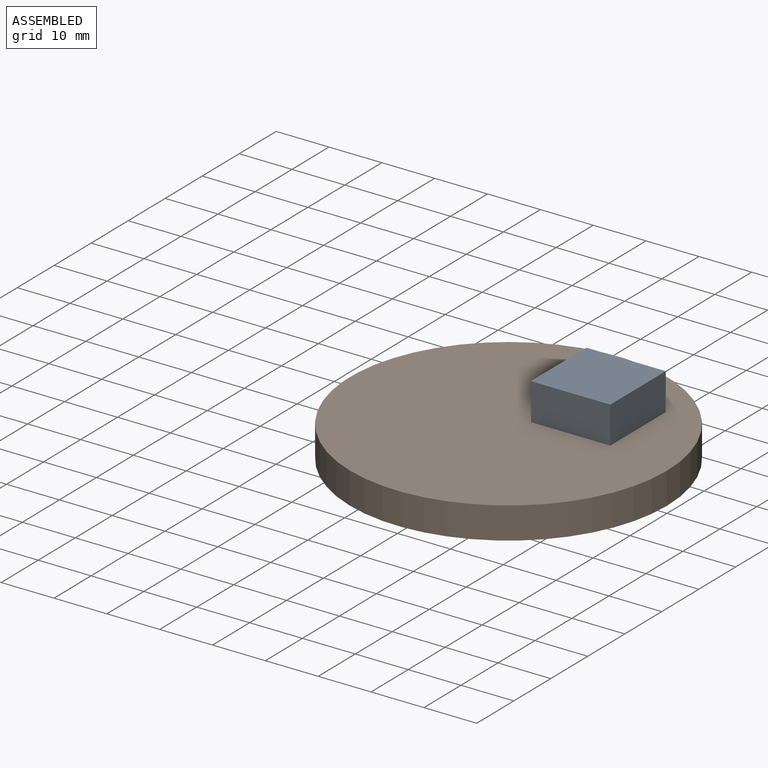
[diagram: assembled view]
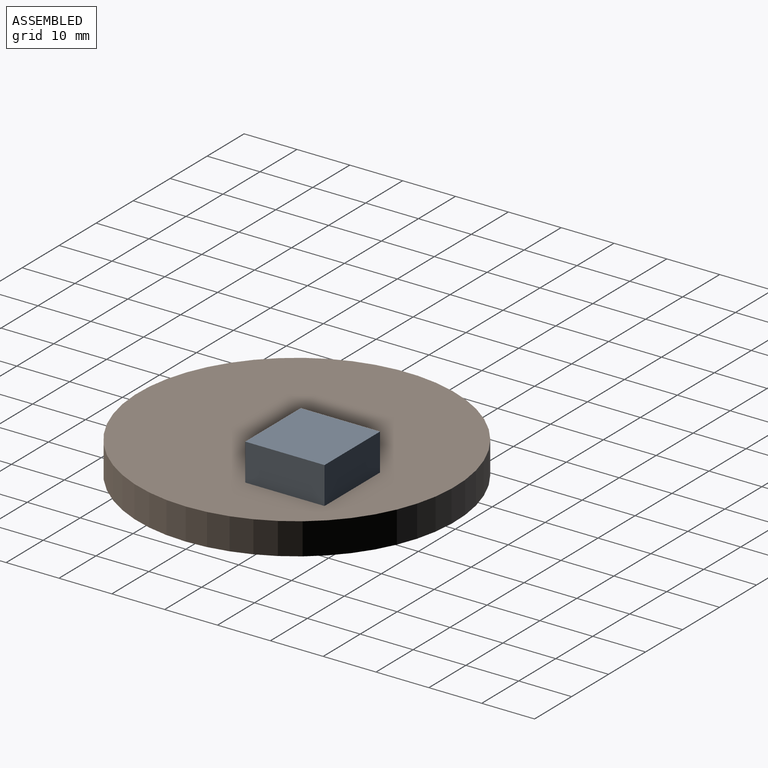
[diagram: assembled view, second angle]
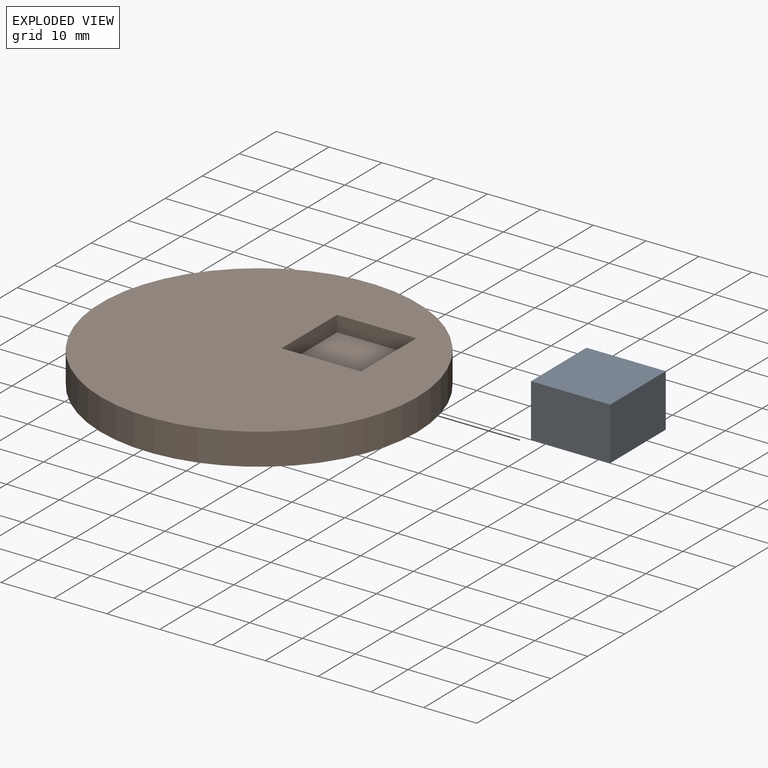
[diagram: exploded view]
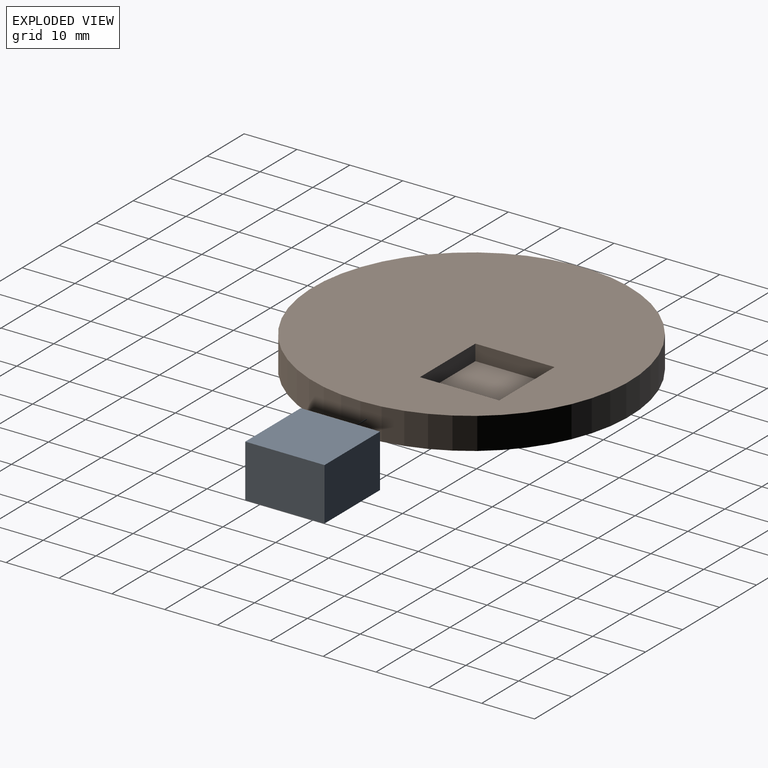
[diagram: exploded view, second angle]
ASSEMBLY  parts=2 mates=3
PART A: 6 faces, bbox 15x15x10 mm
  f0: plane 15x10mm, normal (1,0,0), area 150mm2, adj f1,f3,f4,f5
  f1: plane 15x10mm, normal (0,1,0), area 150mm2, adj f0,f2,f4,f5
  f2: plane 15x10mm, normal (-1,0,0), area 150mm2, adj f1,f3,f4,f5
  f3: plane 15x10mm, normal (0,-1,0), area 150mm2, adj f0,f2,f4,f5
  f4: plane 15x15mm, normal (0,0,1), area 225mm2, adj f0,f1,f2,f3
  f5: plane 15x15mm, normal (0,0,-1), area 225mm2, adj f0,f1,f2,f3
PART B: 8 faces, bbox 60x60x6 mm
  f0: cylinder r=30mm len=60mm, axis (0,0,-1), area 1131mm2, adj f1,f2
  f1: plane 60x60mm, normal (0,0,1), area 2602.4mm2, adj f0,f3,f4,f5,f6
  f2: plane 60x60mm, normal (0,0,-1), area 2827.4mm2, adj f0
  f3: plane 15x3mm, normal (-1,0,0), area 45mm2, adj f1,f4,f6,f7
  f4: plane 15x3mm, normal (0,-1,0), area 45mm2, adj f1,f3,f5,f7
  f5: plane 15x3mm, normal (1,0,0), area 45mm2, adj f1,f4,f6,f7
  f6: plane 15x3mm, normal (0,1,0), area 45mm2, adj f1,f3,f5,f7
  f7: plane 15x15mm, normal (0,0,1), area 225mm2, adj f3,f4,f5,f6
PLACE A t=(10,10,3)mm
PLACE B at identity fixed
MATE planar A.f0 <-> B.f3  axis (1,0,0) through (17.5,10,8)mm
MATE planar A.f5 <-> B.f7  axis (0,0,-1) through (10,10,3)mm
MATE planar A.f3 <-> B.f6  axis (0,-1,0) through (10,2.5,8)mm
